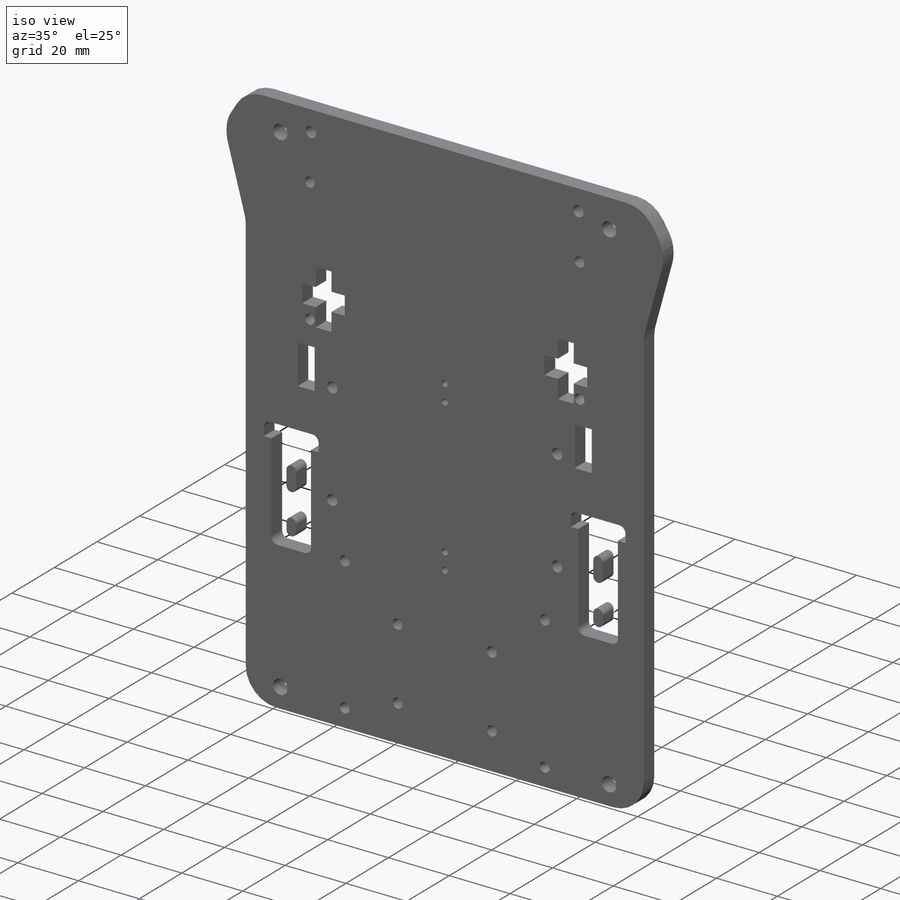
[diagram: iso view]
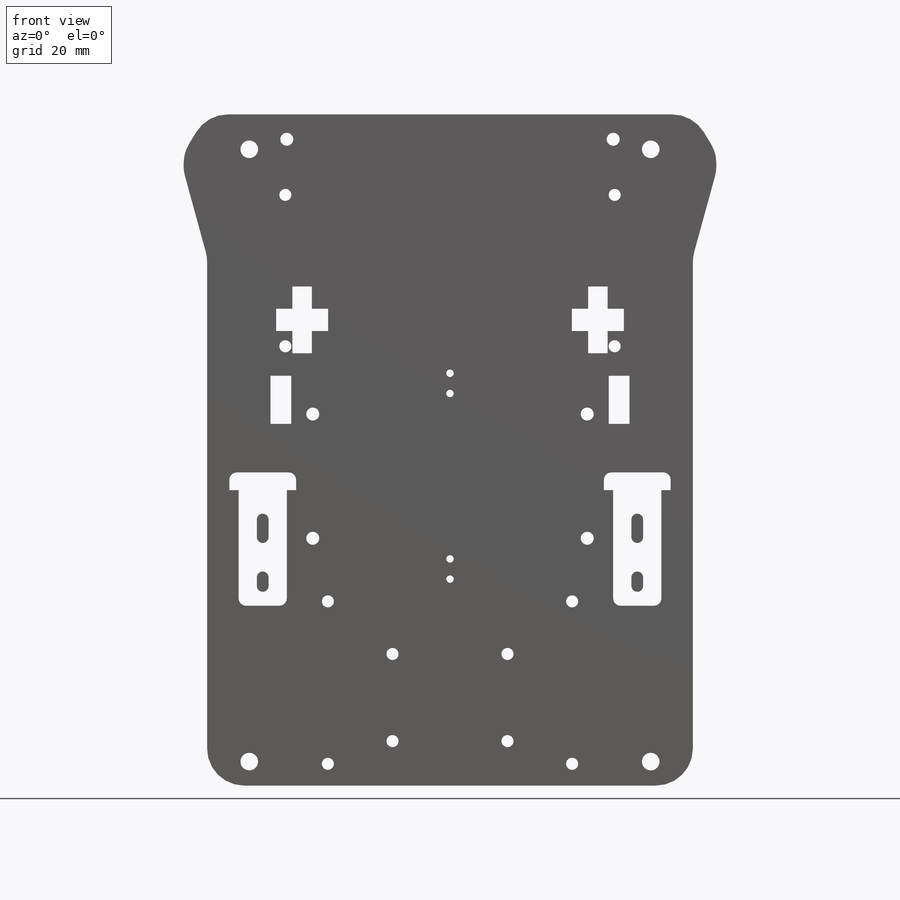
[diagram: front view]
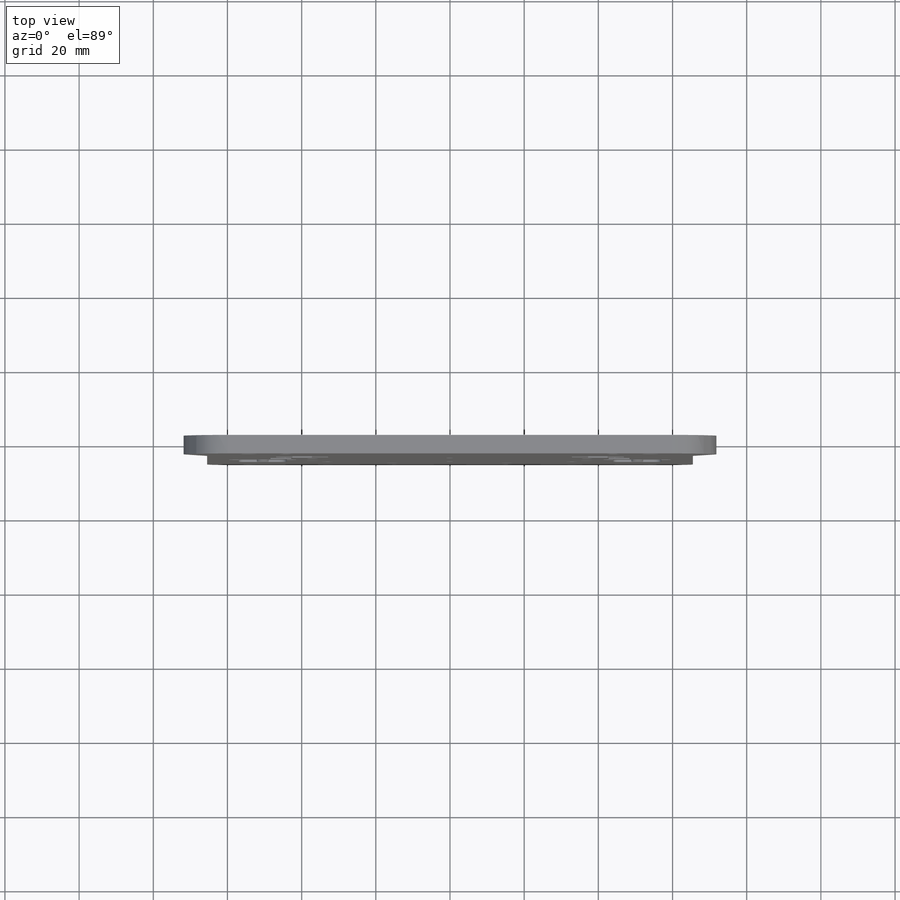
[diagram: top view]
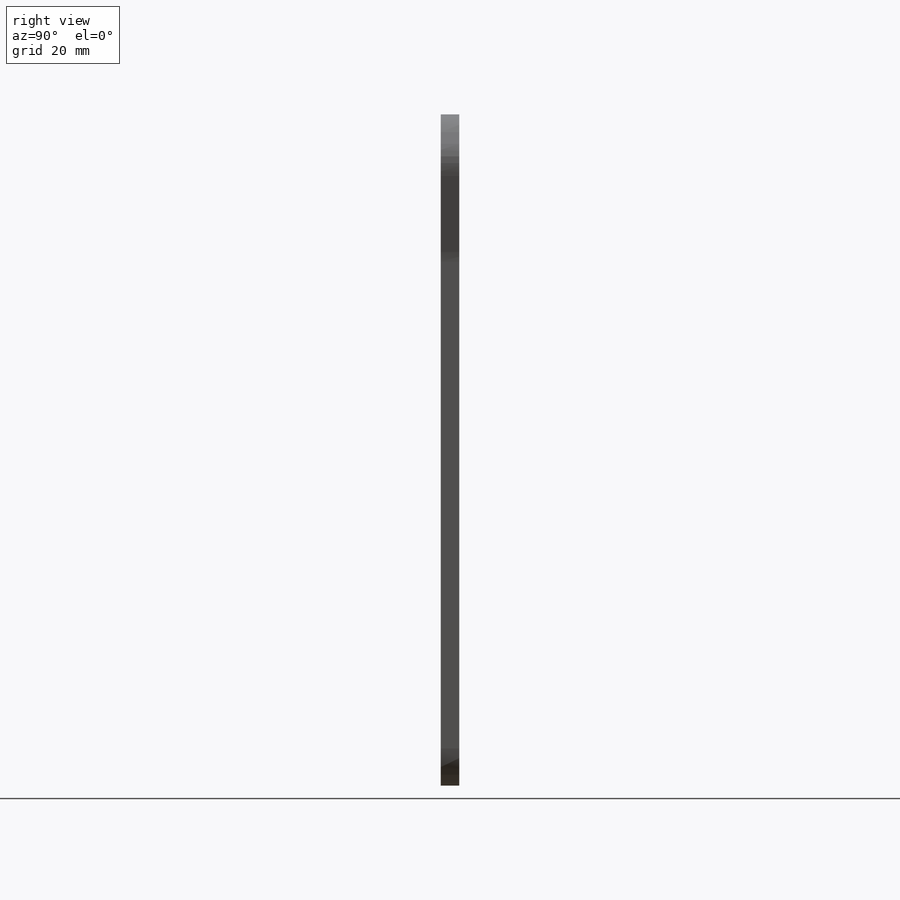
[diagram: right view]
SOLIDWORKS PART (.sldprt)
format: sldprt  version: not decoded by parser v0  size: 1,309,184 bytes
history: native  units: mm
features: sketch x33, cut_extrude x21, extrude x11, material x1 (+13 scaffold rows collapsed)
feature tree (79):
  scaffold x13  (default folders/planes/origin — collapsed)
  material  "Material <not specified>"
  sketch  "Outline1"
  sketch  "Top PlaTE"  dims[D3=4.7498mm D1=127.0mm 180.25=108.25mm D4=6.35mm D2=54.125mm D5=108.25mm]
  sketch  "Outline 2"  dims[c1.D9=3.25mm c1.D17=3.25mm c1.D29=18.0mm c1.D15=3.25mm c1.D1=58.0mm c1.D2=63.0mm c1.D3=54.3mm c1.D4=76.36mm c1.D5=30.0mm c1.D6=30.0mm c1.D7=3.66mm c1.D8=3.66mm c2.D2=56.35mm c2.D10=5.25mm c2.D11=5.25mm c2.D12=5.25mm c2.D13=5.25mm c2.D14=24.0mm c2.D15=5.0mm c2.D16=2.5mm c2.D18=8.5mm c2.D19=21.0mm c2.D20=14.0mm c2.D21=30.0mm c2.D22=13.0mm c2.D23=12.5mm c2.D24=6.0mm c2.D25=5.25mm c2.D26=3.0mm c2.D27=13.5mm c2.D28=7.5mm c2.D30=20.0mm c2.D31=~167.534325mm c3.D31=45.0deg c4.D31=20.0mm c4.D32=64.0mm c4.D33=64.0mm c4.D34=21.0mm c4.D35=21.0mm c4.D36=20.0mm c4.D37=~18.788294mm c5.D31=5.0mm c5.D32=25.0mm c5.D33=25.0mm c5.D34=~17.67767mm c5.D35=17.68mm c5.D37=65.0mm c5.D38=22.0mm c5.D27=15.0mm c5.D28=31.0mm c5.D39=23.5mm c5.D40=89.0mm c5.D41=7.25mm c5.D29=~142.614661mm c5.D30=10.0mm c5.D15=63.67mm c5.D5=65.5mm c6.D15=19.5mm c6.D1=~10.321211mm]
  extrude  "Boss-Extrude2"  Depth=5mm
  sketch  "Sketch2"  dims[c1.D2=9.525mm c1.D3=9.525mm c1.D4=40.0mm c1.D5=40.0mm c2.D4=100.0mm c2.D5=50.0mm c2.D1=0.0mm]
  cut_extrude  "Wire Holes"  [1 undecoded]
  sketch  "Sensor Board"  dims[c1.D4=3.5mm c1.D1=7.25mm c1.D2=19.0mm c1.D3=19.0mm c1.D5=10.65mm c1.D6=95.25mm c1.D7=2.75mm c1.D8=4.0mm c2.D2=88.0mm c2.D1=10.65mm]
  sketch  "Sketch4"  dims[D1=3.25mm D5=2.0mm D6=2.0mm D7=2.0mm D8=2.0mm D2=56.35mm D3=58.0mm D4=62.5mm D9=44.6mm D10=22.3mm D11=55.5mm D12=27.75mm]
  cut_extrude  "Battery Pack"  [1 undecoded]
  sketch  "Sketch5"  dims[c1.D2=~5.508257mm c1.D8=3.25mm c1.D1=5.25mm c2.D2=3.0mm c2.D3=8.5mm c2.D4=6.0mm c2.D5=6.0mm c2.D6=14.0mm c2.D7=3.0mm c2.D9=19.5mm c2.D10=50.0mm c3.D9=20.0mm c3.D10=55.98mm c4.D9=20.0mm c4.D10=~20.247385mm c5.D10=90.0deg c6.D10=~72.710863mm c6.D11=12.0mm c6.D2=17.3mm]
  cut_extrude  "Motor mounts"  [1 undecoded]
  sketch  "Sketch14"  dims[D8=3.25mm D1=5.25mm D2=3.0mm D3=8.5mm D4=6.0mm D5=12.0mm D6=14.0mm D7=3.0mm]
  cut_extrude  "Motor Mount / Just Holes"  Depth=10mm
  sketch  "Sketch6"  dims[c1.D4=3.25mm c1.D6=3.25mm c1.D1=0.63mm c1.D2=54.3mm c1.D3=76.36mm c1.D5=5.25mm c2.D6=5.25mm c2.D7=5.25mm c2.D8=5.25mm c2.D1=~126.057945mm c2.D9=54.3mm]
  cut_extrude  "mtr_cltr"  [1 undecoded]
  sketch  "Caster"  dims[c1.D4=3.25mm c1.D1=23.5mm c1.D2=31.0mm c1.D3=12.0mm c1.D5=~39.054738mm c1.D6=~39.092929mm c2.D5=33.0mm c2.D6=38.0mm c2.D7=3.5mm c2.D8=4.75mm]
  cut_extrude  "Front Wheel"  [1 undecoded]
  sketch  "anlg_ctlr"  dims[D7=3.25mm D1=95.3mm D2=50.81mm D3=5.0mm D4=5.0mm D5=3.25mm D6=3.25mm D8=~16.710863mm D9=50.81mm]
  cut_extrude  "anlg_ctlr.1"  [1 undecoded]
  sketch  "brd_board"  dims[c1.D3=3.5mm c1.D1=33.5mm c1.D2=74.0mm c2.D3=~37.982564mm c2.D4=~53.252608mm c2.D5=~83.98539mm c3.D4=83.7mm c3.D5=45.1mm c3.D6=5.8mm c3.D7=75.0mm]
  cut_extrude  "Breadboard"  [1 undecoded]
  sketch  "Sketch10"  dims[D13=3.5mm D1=4.0mm D2=9.0mm D3=19.5mm D4=12.25mm D5=9.25mm D6=66.0mm D7=12.5mm D8=33.0mm D9=2.75mm D10=2.75mm D11=6.25mm D12=2.0mm D14=15.0mm D15=3.5mm D16=3.5mm D17=2.0mm D18=18.0mm D19=7.5mm D20=2.0mm D21=15.0mm D22=66.0mm]
  cut_extrude  "Arduino Uno"  [1 undecoded]
  sketch  "Sketch11"  dims[c1.D13=3.5mm c1.D20=3.5mm c1.D1=4.0mm c1.D2=9.0mm c1.D3=19.5mm c1.D4=12.25mm c1.D5=9.25mm c1.D6=99.0mm c1.D7=12.5mm c1.D8=33.0mm c1.D9=2.75mm c1.D10=2.75mm c1.D11=6.25mm c1.D12=2.0mm c1.D14=15.0mm c1.D15=3.5mm c1.D16=3.5mm c1.D17=2.0mm c1.D18=18.0mm c1.D19=7.5mm c2.D17=66.0mm c2.D20=8.0mm c2.D21=2.5mm c2.D22=66.0mm c2.D23=15.0mm c2.D24=3.5mm c2.D25=3.5mm c2.D26=27.0mm c2.D27=54.0mm]
  cut_extrude  "Arduino Mega"  [1 undecoded]
  sketch  "Sketch12"  dims[D11=3.5mm D1=2.6mm D2=9.0mm D3=8.0mm D4=16.0mm D5=17.0mm D6=14.5mm D7=5.0mm D8=86.5mm D9=30.0mm D10=1.0mm D12=14.5mm D13=14.5mm D14=3.0mm 3=3.0mm D15=6.5mm D16=5.0mm D17=5.0mm D18=6.5mm]
  cut_extrude  "BeagleBone Black"  [1 undecoded]
  sketch  "Sketch13"  dims[D12=3.5mm D1=56.25mm D2=18.5mm D3=8.5mm D4=13.25mm D5=6.5mm D6=16.0mm D7=2.0mm D8=85.0mm D9=~8.805402mm D10=7.5mm D11=2.0mm D13=12.5mm D14=5.0mm D15=17.75mm D16=25.0mm]
  cut_extrude  "Raspberry Pi 1"  [1 undecoded]
  sketch  "Sketch15"  dims[D1=4.5mm D2=124.0mm D3=45.0mm]
  cut_extrude  "StackingHoles"  [1 undecoded]
  sketch  "8push_btn"  dims[D1=3.175mm D2=3.175mm .125in=3.175mm D3=3.175mm D4=57.15mm D5=23.114mm D6=25.908mm D7=25.908mm D8=25.908mm D9=25.908mm D10=8.382mm D11=8.382mm D12=8.382mm D13=8.382mm]
  sketch  "FPGA"  dims[D3=3.5mm D1=76.2mm D2=76.2mm D4=68.0mm D5=76.2mm D6=76.2mm]
  cut_extrude  "8push_btn.1"  [1 undecoded]
  cut_extrude  "Cut-Extrude3"  [1 undecoded]
  extrude  "Boss-Extrude3"  [1 undecoded]
  sketch  "Top PlaTE<3>"  dims[D1=3.0mm]
  cut_extrude  "Sensor"  [1 undecoded]
  sketch  "Sketch18"  dims[c1.D5=1.625mm c1.D1=~16.876281mm c1.D2=~8.766899mm c2.D1=~20.163869mm c2.D2=~11.177797mm c3.D1=5.4mm c3.D2=5.4mm c3.D3=13.0mm c3.D4=13.0mm c3.D5=8.5mm c3.D6=2.25mm c3.D7=2.25mm c3.D8=13.0mm c3.D9=~10.03879mm c4.D8=5.6mm c4.D9=13.0mm c4.D10=~7.361105mm c5.D9=5.6mm]
  cut_extrude  "Cut-Extrude5"  [1 undecoded]
  sketch  "Sketch19"  dims[c1.D5=~0.884465mm c1.D6=3.175mm c1.D9=2.0mm c1.D1=~28.516393mm c1.D2=~10.713981mm c2.D1=~8.934357mm c2.D2=~17.377422mm c3.D1=13.0mm c3.D2=18.0mm c3.D3=4.7625mm c3.D4=31.18mm c3.D5=3.175mm c3.D7=5.34mm c3.D8=13.16mm c3.D10=~4.747759mm c3.D11=15.0mm c3.D12=3.175mm]
  cut_extrude  "Cut-Extrude6"  [1 undecoded]
  cut_extrude  "Cut-Extrude8"  [1 undecoded]
  sketch  "Sketch17<3>"
  cut_extrude  "Cut-Extrude9"  [1 undecoded]
  sketch  "Sketch9<2>"
  extrude  "Boss-Extrude4"  [1 undecoded]
  sketch  "Sketch17<5>"  dims[D1=2.0mm D19=10.0mm]
  extrude  "Boss-Extrude5"  [1 undecoded]
  sketch  "Sketch16<3>"  dims[D1=2.0mm D19=10.0mm]
  extrude  "Boss-Extrude6"  [1 undecoded]
  sketch  "Sketch10<3>"  dims[D1=2.0mm D19=10.0mm]
  extrude  "Boss-Extrude7"  [1 undecoded]
  sketch  "Sketch6<2>"  dims[D1=2.0mm D19=10.0mm]
  extrude  "Boss-Extrude8"  [1 undecoded]
  sketch  "Sketch19<3>"  dims[D1=5.4mm D19=10.0mm]
  extrude  "Boss-Extrude9"  [1 undecoded]
  sketch  "Sketch8<2>"  dims[D1=2.0mm D19=20.0mm]
  extrude  "Boss-Extrude10"  [1 undecoded]
  sketch  "Sketch9<3>"  dims[D1=10.0mm D19=20.0mm]
  extrude  "Boss-Extrude11"  [1 undecoded]
  sketch  "Sketch7<3>"  dims[D1=2.0mm D19=10.0mm]
  extrude  "Boss-Extrude12"  [1 undecoded]
  sketch  "Sensor Board<3>"  dims[D1=2.0mm D19=20.0mm]
  cut_extrude  "Cut-Extrude10"  [1 undecoded]
decode coverage: 32 of 65 modeling features carry decoded parameters
note: ~ marks probable driven/reference dimensions
note: 30 parameter values undecoded
summary: no parameter record found for 30 features
note: suppression state not decoded; provenance and decode notes live in map.json
